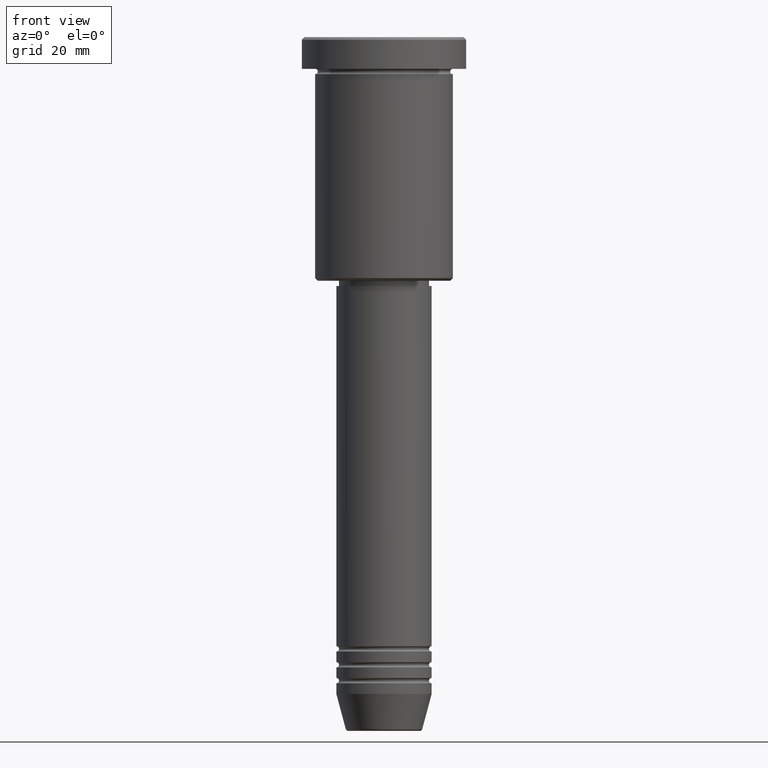
[diagram: clean part render]
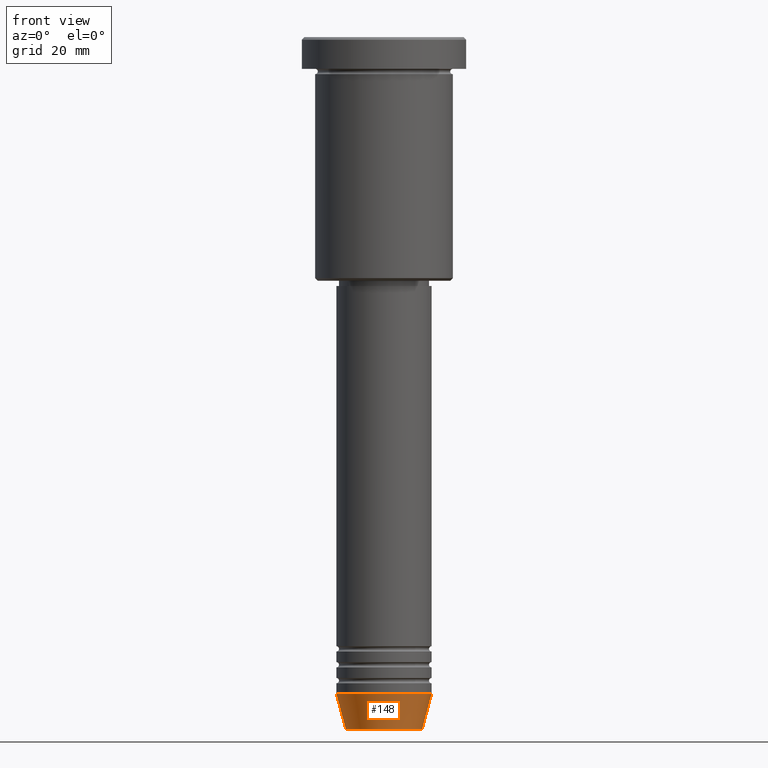
[diagram: same view with one face highlighted and labeled with its STEP entity id]
A machine part, front view. The second image highlights one B-rep face of the part: STEP entity #148.
In plain terms, the highlighted conical surface has half-angle 15 deg.
Its self-contained STEP definition (entity closure, byte-faithful):
#26 = EDGE_CURVE ( 'NONE', #856, #1053, #338, .T. ) ;
#44 = EDGE_CURVE ( 'NONE', #1053, #357, #639, .T. ) ;
#49 = VECTOR ( 'NONE', #1179, 1000.000000000000000 ) ;
#61 = CARTESIAN_POINT ( 'NONE',  ( 0.000000000000000000, 0.000000000000000000, -124.0000000000000000 ) ) ;
#148 = ADVANCED_FACE ( 'NONE', ( #581 ), #775, .T. ) ;
#182 = DIRECTION ( 'NONE',  ( 1.000000000000000000, 0.000000000000000000, 0.000000000000000000 ) ) ;
#332 = EDGE_CURVE ( 'NONE', #856, #1042, #445, .T. ) ;
#337 = AXIS2_PLACEMENT_3D ( 'NONE', #988, #1163, #1084 ) ;
#338 = CIRCLE ( 'NONE', #609, 7.223655072137188604 ) ;
#357 = VERTEX_POINT ( 'NONE', #390 ) ;
#390 = CARTESIAN_POINT ( 'NONE',  ( 9.000000000000000000, 0.000000000000000000, -124.0000000000000000 ) ) ;
#437 = EDGE_LOOP ( 'NONE', ( #752, #850, #1128, #969 ) ) ;
#445 = LINE ( 'NONE', #814, #949 ) ;
#446 = AXIS2_PLACEMENT_3D ( 'NONE', #61, #972, #783 ) ;
#447 = CARTESIAN_POINT ( 'NONE',  ( 9.000000000000000000, 0.000000000000000000, -124.0000000000000000 ) ) ;
#471 = DIRECTION ( 'NONE',  ( -0.2588190451025213501, 3.169619151431772337E-17, 0.9659258262890680902 ) ) ;
#489 = CARTESIAN_POINT ( 'NONE',  ( -9.000000000000000000, 1.102182119232617714E-15, -124.0000000000000000 ) ) ;
#581 = FACE_OUTER_BOUND ( 'NONE', #437, .T. ) ;
#609 = AXIS2_PLACEMENT_3D ( 'NONE', #646, #1004, #182 ) ;
#639 = LINE ( 'NONE', #447, #49 ) ;
#646 = CARTESIAN_POINT ( 'NONE',  ( 0.000000000000000000, 0.000000000000000000, -130.6294095225512706 ) ) ;
#751 = EDGE_CURVE ( 'NONE', #1042, #357, #860, .T. ) ;
#752 = ORIENTED_EDGE ( 'NONE', *, *, #332, .F. ) ;
#754 = CARTESIAN_POINT ( 'NONE',  ( -7.223655072137189492, 9.934123627281765110E-16, -130.6294095225512706 ) ) ;
#775 = CONICAL_SURFACE ( 'NONE', #446, 9.000000000000000000, 0.2617993877991500740 ) ;
#783 = DIRECTION ( 'NONE',  ( 1.000000000000000000, 0.000000000000000000, 0.000000000000000000 ) ) ;
#814 = CARTESIAN_POINT ( 'NONE',  ( -9.000000000000000000, 1.102182119232617714E-15, -124.0000000000000000 ) ) ;
#850 = ORIENTED_EDGE ( 'NONE', *, *, #26, .T. ) ;
#856 = VERTEX_POINT ( 'NONE', #754 ) ;
#860 = CIRCLE ( 'NONE', #337, 9.000000000000000000 ) ;
#866 = CARTESIAN_POINT ( 'NONE',  ( 7.223655072137188604, 0.000000000000000000, -130.6294095225512706 ) ) ;
#949 = VECTOR ( 'NONE', #471, 1000.000000000000000 ) ;
#969 = ORIENTED_EDGE ( 'NONE', *, *, #751, .F. ) ;
#972 = DIRECTION ( 'NONE',  ( -0.000000000000000000, -0.000000000000000000, 1.000000000000000000 ) ) ;
#988 = CARTESIAN_POINT ( 'NONE',  ( 0.000000000000000000, 0.000000000000000000, -124.0000000000000000 ) ) ;
#1004 = DIRECTION ( 'NONE',  ( -0.000000000000000000, -0.000000000000000000, 1.000000000000000000 ) ) ;
#1042 = VERTEX_POINT ( 'NONE', #489 ) ;
#1053 = VERTEX_POINT ( 'NONE', #866 ) ;
#1084 = DIRECTION ( 'NONE',  ( 1.000000000000000000, 0.000000000000000000, 0.000000000000000000 ) ) ;
#1128 = ORIENTED_EDGE ( 'NONE', *, *, #44, .T. ) ;
#1163 = DIRECTION ( 'NONE',  ( -0.000000000000000000, -0.000000000000000000, 1.000000000000000000 ) ) ;
#1179 = DIRECTION ( 'NONE',  ( 0.2588190451025213501, 0.000000000000000000, 0.9659258262890680902 ) ) ;